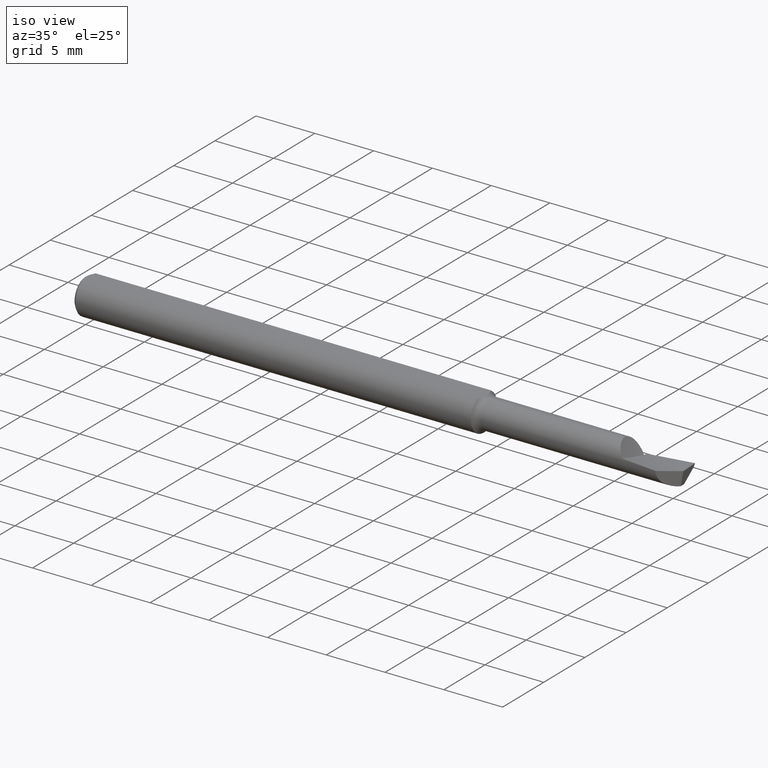
[diagram: clean part render]
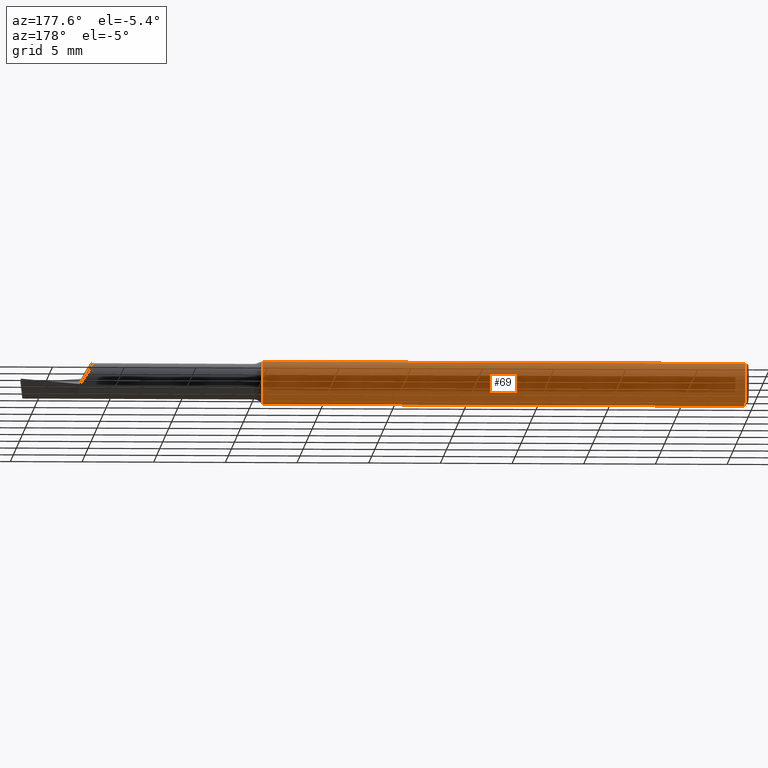
[diagram: tour spotlight — one face highlighted and labeled with its STEP entity id]
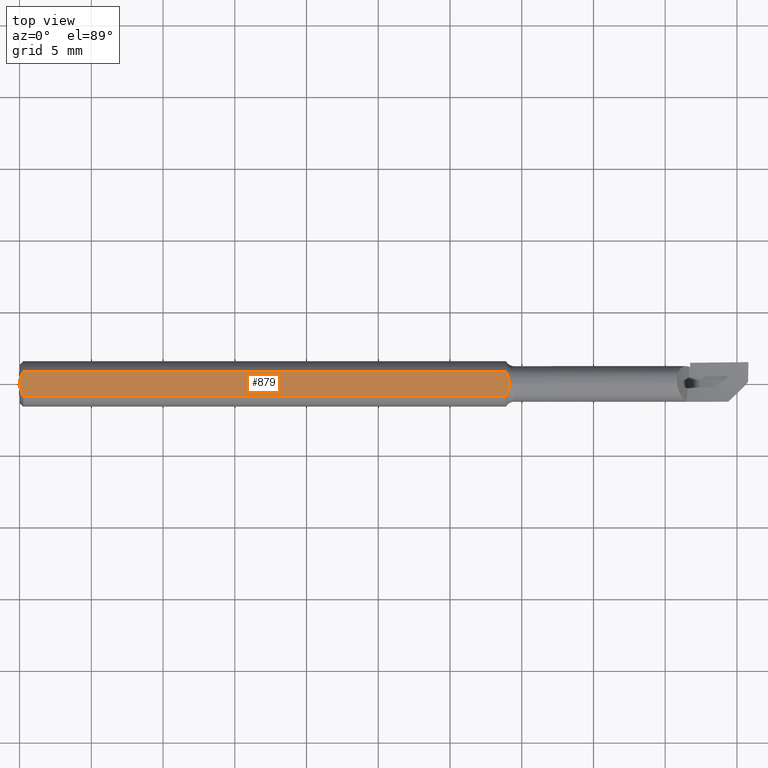
[diagram: tour spotlight — one face highlighted and labeled with its STEP entity id]
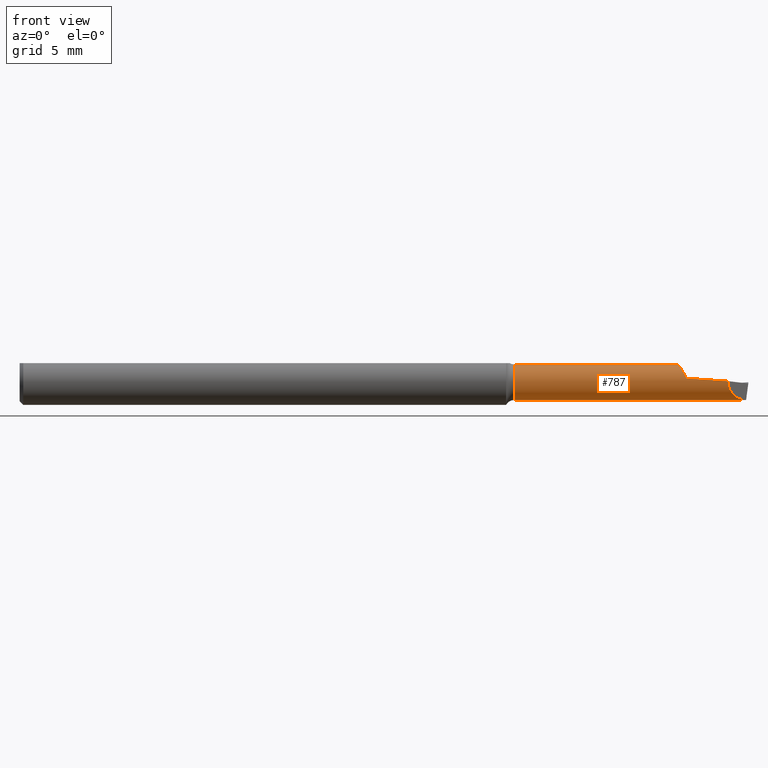
[diagram: tour spotlight — one face highlighted and labeled with its STEP entity id]
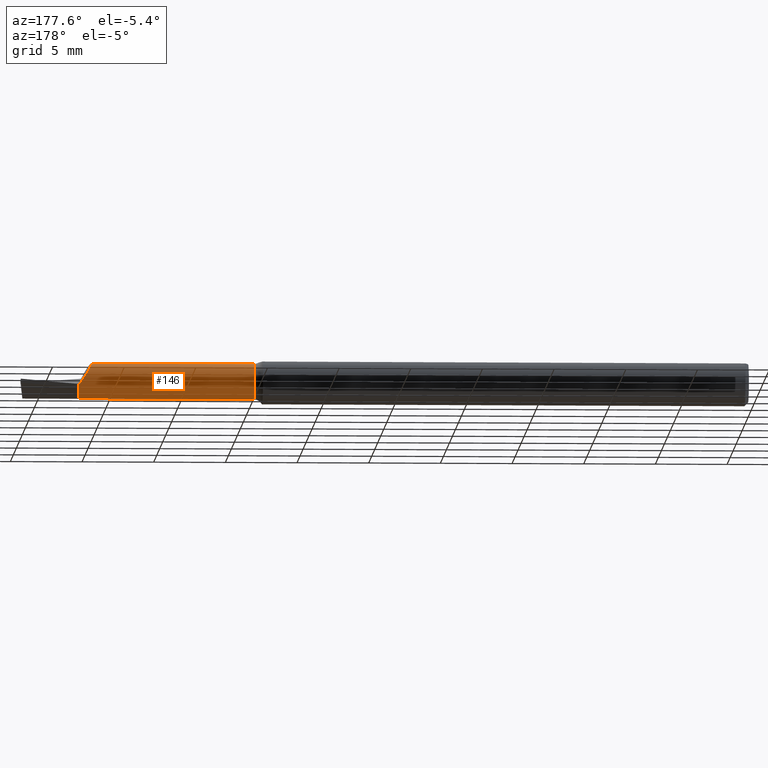
[diagram: tour spotlight — one face highlighted and labeled with its STEP entity id]
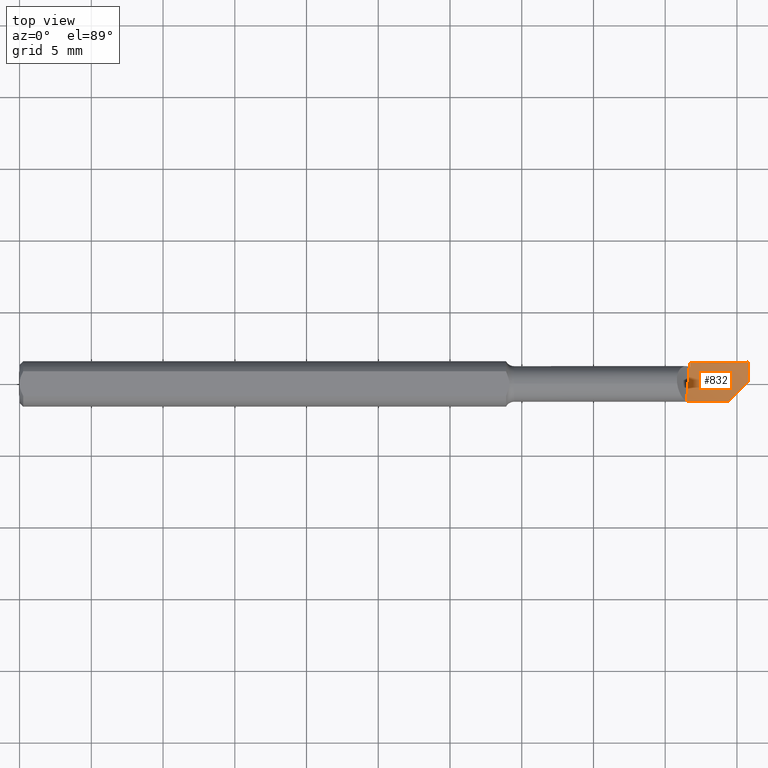
[diagram: tour spotlight — one face highlighted and labeled with its STEP entity id]
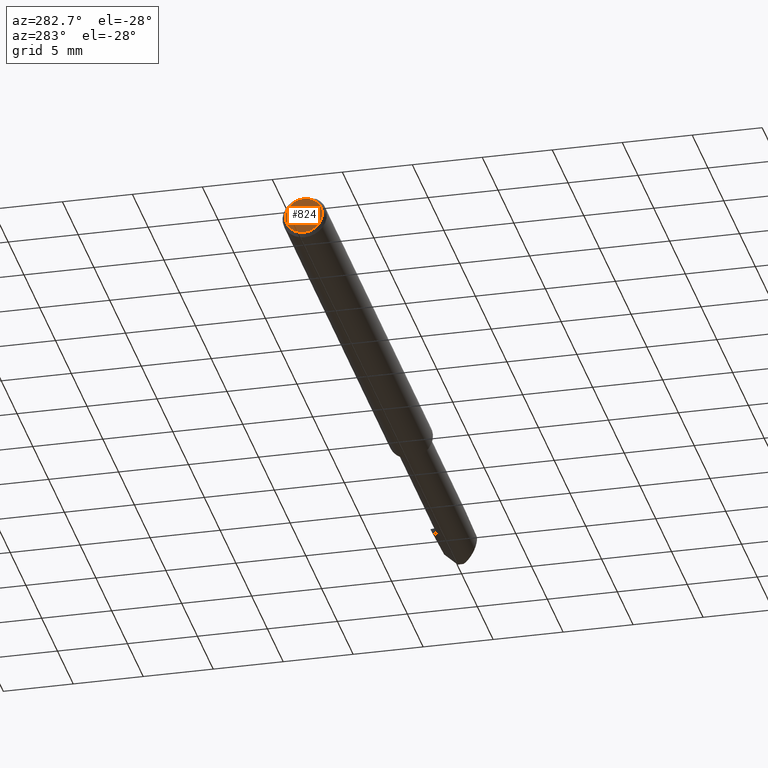
[diagram: tour spotlight — one face highlighted and labeled with its STEP entity id]
A machine part: a face-by-face anatomy tour. The part has 20 B-rep faces; the first image is the clean iso view, then the 6 largest visible faces are spotlighted one at a time (largest first), each with its STEP entity span.

Face 1 — auxiliary view, entity #69. In plain terms, the highlighted cylindrical surface (edge-blend (fillet) strip) has radius 1.5837 mm, axis along (-1, -0, -0).
Definition (entity closure, byte-faithful):
#22 = CYLINDRICAL_SURFACE ( 'NONE', #374, 0.06235000000000000264 ) ;
#35 = VERTEX_POINT ( 'NONE', #129 ) ;
#69 = ADVANCED_FACE ( 'NONE', ( #151 ), #22, .T. ) ;
#84 = CIRCLE ( 'NONE', #577, 0.06235000000000000264 ) ;
#103 = DIRECTION ( 'NONE',  ( 0.000000000000000000, 0.000000000000000000, -1.000000000000000000 ) ) ;
#126 = VECTOR ( 'NONE', #630, 39.37007874015748143 ) ;
#129 = CARTESIAN_POINT ( 'NONE',  ( 0.01000000000000000021, 0.03386738844375223462, 0.05234999999999997988 ) ) ;
#151 = FACE_OUTER_BOUND ( 'NONE', #289, .T. ) ;
#172 = DIRECTION ( 'NONE',  ( 1.000000000000000000, 0.000000000000000000, 0.000000000000000000 ) ) ;
#212 = ORIENTED_EDGE ( 'NONE', *, *, #485, .F. ) ;
#222 = LINE ( 'NONE', #490, #807 ) ;
#249 = CIRCLE ( 'NONE', #673, 0.06235000000000000264 ) ;
#254 = EDGE_CURVE ( 'NONE', #623, #637, #774, .T. ) ;
#263 = CIRCLE ( 'NONE', #475, 0.06235000000000000264 ) ;
#289 = EDGE_LOOP ( 'NONE', ( #212, #699, #528, #717, #805, #838 ) ) ;
#291 = AXIS2_PLACEMENT_3D ( 'NONE', #355, #297, #494 ) ;
#297 = DIRECTION ( 'NONE',  ( -1.000000000000000000, -0.000000000000000000, -0.000000000000000000 ) ) ;
#299 = VERTEX_POINT ( 'NONE', #414 ) ;
#301 = DIRECTION ( 'NONE',  ( 0.000000000000000000, 0.000000000000000000, -1.000000000000000000 ) ) ;
#332 = CARTESIAN_POINT ( 'NONE',  ( 0.01000000000000000021, -0.03386738844375224156, 0.05234999999999997988 ) ) ;
#335 = CARTESIAN_POINT ( 'NONE',  ( 1.334999999999999520, -0.03386738844375224156, 0.05234999999999997988 ) ) ;
#355 = CARTESIAN_POINT ( 'NONE',  ( 0.01000000000000000021, 0.000000000000000000, 0.000000000000000000 ) ) ;
#357 = CARTESIAN_POINT ( 'NONE',  ( 0.000000000000000000, -0.03386738844375224156, 0.05234999999999997988 ) ) ;
#371 = VERTEX_POINT ( 'NONE', #579 ) ;
#374 = AXIS2_PLACEMENT_3D ( 'NONE', #556, #842, #768 ) ;
#379 = EDGE_CURVE ( 'NONE', #512, #371, #249, .T. ) ;
#388 = CIRCLE ( 'NONE', #291, 0.06235000000000000264 ) ;
#414 = CARTESIAN_POINT ( 'NONE',  ( 0.01000000000000000021, 0.000000000000000000, -0.06235000000000000264 ) ) ;
#439 = CARTESIAN_POINT ( 'NONE',  ( 0.01000000000000000021, 0.000000000000000000, 0.000000000000000000 ) ) ;
#457 = DIRECTION ( 'NONE',  ( -1.000000000000000000, -0.000000000000000000, -0.000000000000000000 ) ) ;
#475 = AXIS2_PLACEMENT_3D ( 'NONE', #439, #457, #888 ) ;
#485 = EDGE_CURVE ( 'NONE', #371, #35, #222, .T. ) ;
#490 = CARTESIAN_POINT ( 'NONE',  ( 0.000000000000000000, 0.03386738844375223462, 0.05234999999999997988 ) ) ;
#494 = DIRECTION ( 'NONE',  ( 0.000000000000000000, 0.000000000000000000, 1.000000000000000000 ) ) ;
#498 = EDGE_CURVE ( 'NONE', #299, #623, #388, .T. ) ;
#512 = VERTEX_POINT ( 'NONE', #702 ) ;
#528 = ORIENTED_EDGE ( 'NONE', *, *, #885, .F. ) ;
#556 = CARTESIAN_POINT ( 'NONE',  ( 0.000000000000000000, 0.000000000000000000, 0.000000000000000000 ) ) ;
#568 = DIRECTION ( 'NONE',  ( -1.000000000000000000, -0.000000000000000000, -0.000000000000000000 ) ) ;
#577 = AXIS2_PLACEMENT_3D ( 'NONE', #708, #846, #103 ) ;
#579 = CARTESIAN_POINT ( 'NONE',  ( 1.334999999999999520, 0.03386738844375226237, 0.05234999999999997988 ) ) ;
#623 = VERTEX_POINT ( 'NONE', #332 ) ;
#630 = DIRECTION ( 'NONE',  ( 1.000000000000000000, 0.000000000000000000, 0.000000000000000000 ) ) ;
#637 = VERTEX_POINT ( 'NONE', #335 ) ;
#673 = AXIS2_PLACEMENT_3D ( 'NONE', #857, #172, #301 ) ;
#699 = ORIENTED_EDGE ( 'NONE', *, *, #379, .F. ) ;
#702 = CARTESIAN_POINT ( 'NONE',  ( 1.334999999999999520, 7.635672792683760538E-18, -0.06235000000000011366 ) ) ;
#708 = CARTESIAN_POINT ( 'NONE',  ( 1.334999999999999520, 0.000000000000000000, 0.000000000000000000 ) ) ;
#717 = ORIENTED_EDGE ( 'NONE', *, *, #254, .F. ) ;
#768 = DIRECTION ( 'NONE',  ( 0.000000000000000000, 0.000000000000000000, 1.000000000000000000 ) ) ;
#774 = LINE ( 'NONE', #357, #126 ) ;
#805 = ORIENTED_EDGE ( 'NONE', *, *, #498, .F. ) ;
#807 = VECTOR ( 'NONE', #568, 39.37007874015748143 ) ;
#811 = EDGE_CURVE ( 'NONE', #35, #299, #263, .T. ) ;
#838 = ORIENTED_EDGE ( 'NONE', *, *, #811, .F. ) ;
#842 = DIRECTION ( 'NONE',  ( -1.000000000000000000, -0.000000000000000000, -0.000000000000000000 ) ) ;
#846 = DIRECTION ( 'NONE',  ( 1.000000000000000000, 0.000000000000000000, 0.000000000000000000 ) ) ;
#857 = CARTESIAN_POINT ( 'NONE',  ( 1.334999999999999520, 0.000000000000000000, 0.000000000000000000 ) ) ;
#885 = EDGE_CURVE ( 'NONE', #637, #512, #84, .T. ) ;
#888 = DIRECTION ( 'NONE',  ( 0.000000000000000000, 0.000000000000000000, 1.000000000000000000 ) ) ;

Face 2 — top view, entity #879. In plain terms, the highlighted planar face has unit normal (0, -0, 1).
Definition (entity closure, byte-faithful):
#5 = CARTESIAN_POINT ( 'NONE',  ( 1.341766842186041364, 0.01438101913600744672, 0.05234999999999997294 ) ) ;
#19 = EDGE_CURVE ( 'NONE', #371, #395, #567, .T. ) ;
#35 = VERTEX_POINT ( 'NONE', #129 ) ;
#53 = CARTESIAN_POINT ( 'NONE',  ( 1.334999999999999520, 0.03386738844375226237, 0.05234999999999997988 ) ) ;
#104 = CARTESIAN_POINT ( 'NONE',  ( 1.344618518037863364, 0.000000000000000000, 0.05234999999999997988 ) ) ;
#123 = CARTESIAN_POINT ( 'NONE',  ( 1.344618518037863364, 0.000000000000000000, 0.05234999999999997988 ) ) ;
#126 = VECTOR ( 'NONE', #630, 39.37007874015748143 ) ;
#129 = CARTESIAN_POINT ( 'NONE',  ( 0.01000000000000000021, 0.03386738844375223462, 0.05234999999999997988 ) ) ;
#162 = CARTESIAN_POINT ( 'NONE',  ( 1.338776651988929034, -0.02268582240825666937, 0.05234999999999998682 ) ) ;
#188 = CARTESIAN_POINT ( 'NONE',  ( 1.344091638239495401, 0.005901228908898705112, 0.05234999999999997988 ) ) ;
#199 = CARTESIAN_POINT ( 'NONE',  ( 0.01000000000000000021, 0.03386738844375223462, 0.05234999999999997988 ) ) ;
#222 = LINE ( 'NONE', #490, #807 ) ;
#243 = CARTESIAN_POINT ( 'NONE',  ( 0.000000000000000000, -5.426997665009263557E-18, 0.05234999999999997988 ) ) ;
#254 = EDGE_CURVE ( 'NONE', #623, #637, #774, .T. ) ;
#264 = CARTESIAN_POINT ( 'NONE',  ( 0.000000000000000000, -5.426997665009263557E-18, 0.05234999999999997988 ) ) ;
#268 = CARTESIAN_POINT ( 'NONE',  ( 0.007185421074056372141, 0.02868573718286561436, 0.05234999999999997988 ) ) ;
#278 = EDGE_CURVE ( 'NONE', #35, #597, #505, .T. ) ;
#286 = FACE_OUTER_BOUND ( 'NONE', #328, .T. ) ;
#328 = EDGE_LOOP ( 'NONE', ( #752, #518, #705, #665, #377, #865 ) ) ;
#332 = CARTESIAN_POINT ( 'NONE',  ( 0.01000000000000000021, -0.03386738844375224156, 0.05234999999999997988 ) ) ;
#335 = CARTESIAN_POINT ( 'NONE',  ( 1.334999999999999520, -0.03386738844375224156, 0.05234999999999997988 ) ) ;
#357 = CARTESIAN_POINT ( 'NONE',  ( 0.000000000000000000, -0.03386738844375224156, 0.05234999999999997988 ) ) ;
#369 = CARTESIAN_POINT ( 'NONE',  ( 1.336624038813225335, -0.02819059816409839186, 0.05234999999999998682 ) ) ;
#371 = VERTEX_POINT ( 'NONE', #579 ) ;
#377 = ORIENTED_EDGE ( 'NONE', *, *, #19, .F. ) ;
#392 = CARTESIAN_POINT ( 'NONE',  ( 1.343794283669409007, 0.007336375934379098414, 0.05234999999999997988 ) ) ;
#395 = VERTEX_POINT ( 'NONE', #104 ) ;
#408 = B_SPLINE_CURVE_WITH_KNOTS ( 'NONE', 3,
 ( #243, #797, #452, #642, #657, #875 ),
 .UNSPECIFIED., .F., .F.,
 ( 4, 2, 4 ),
 ( 0.001820301466808375672, 0.002269751589838322255, 0.002719201712868268839 ),
 .UNSPECIFIED. ) ;
#431 = CARTESIAN_POINT ( 'NONE',  ( 1.344618518037863142, -0.005946755993999284541, 0.05234999999999997988 ) ) ;
#435 = CARTESIAN_POINT ( 'NONE',  ( 1.344618518037863364, 0.000000000000000000, 0.05234999999999997988 ) ) ;
#441 = CARTESIAN_POINT ( 'NONE',  ( 1.334999999999999520, -0.03386738844375224156, 0.05234999999999997988 ) ) ;
#445 = EDGE_CURVE ( 'NONE', #395, #637, #710, .T. ) ;
#452 = CARTESIAN_POINT ( 'NONE',  ( 0.001055043921633255690, -0.01186408073210960291, 0.05234999999999997988 ) ) ;
#456 = CARTESIAN_POINT ( 'NONE',  ( 1.344401120227541213, 0.003715400134043260211, 0.05234999999999997294 ) ) ;
#485 = EDGE_CURVE ( 'NONE', #371, #35, #222, .T. ) ;
#490 = CARTESIAN_POINT ( 'NONE',  ( 0.000000000000000000, 0.03386738844375223462, 0.05234999999999997988 ) ) ;
#505 = B_SPLINE_CURVE_WITH_KNOTS ( 'NONE', 3,
 ( #199, #268, #537, #694, #606, #684 ),
 .UNSPECIFIED., .F., .F.,
 ( 4, 2, 4 ),
 ( 0.0009229516234080532410, 0.001371626545108214565, 0.001820301466808375672 ),
 .UNSPECIFIED. ) ;
#506 = CARTESIAN_POINT ( 'NONE',  ( 1.342776111237222292, -0.01157676477903671515, 0.05234999999999997988 ) ) ;
#509 = DIRECTION ( 'NONE',  ( 0.000000000000000000, -1.000000000000000000, -1.036675771730518732E-16 ) ) ;
#518 = ORIENTED_EDGE ( 'NONE', *, *, #743, .T. ) ;
#537 = CARTESIAN_POINT ( 'NONE',  ( 0.004671770759546989976, 0.02323517832780104542, 0.05234999999999997988 ) ) ;
#567 = B_SPLINE_CURVE_WITH_KNOTS ( 'NONE', 3,
 ( #53, #604, #669, #5, #819, #392, #188, #456, #747, #738, #883, #123 ),
 .UNSPECIFIED., .F., .F.,
 ( 4, 2, 2, 2, 2, 4 ),
 ( 0.008890890773429874216, 0.009308003943733622956, 0.009516560528885492989, 0.009620838821461428006, 0.009672977967749395514, 0.009725117114037361288 ),
 .UNSPECIFIED. ) ;
#568 = DIRECTION ( 'NONE',  ( -1.000000000000000000, -0.000000000000000000, -0.000000000000000000 ) ) ;
#579 = CARTESIAN_POINT ( 'NONE',  ( 1.334999999999999520, 0.03386738844375226237, 0.05234999999999997988 ) ) ;
#597 = VERTEX_POINT ( 'NONE', #264 ) ;
#604 = CARTESIAN_POINT ( 'NONE',  ( 1.336621382626883792, 0.02819988280240982512, 0.05235000000000000070 ) ) ;
#606 = CARTESIAN_POINT ( 'NONE',  ( -7.517250668112770884E-16, 0.005954997531773991229, 0.05234999999999998682 ) ) ;
#623 = VERTEX_POINT ( 'NONE', #332 ) ;
#630 = DIRECTION ( 'NONE',  ( 1.000000000000000000, 0.000000000000000000, 0.000000000000000000 ) ) ;
#634 = DIRECTION ( 'NONE',  ( 0.000000000000000000, -1.036675771730518732E-16, 1.000000000000000000 ) ) ;
#637 = VERTEX_POINT ( 'NONE', #335 ) ;
#639 = CARTESIAN_POINT ( 'NONE',  ( 2.000787401574803059, 0.08234999999999999265, 0.05234999999999998682 ) ) ;
#642 = CARTESIAN_POINT ( 'NONE',  ( 0.004679365186781223734, -0.02325953974079656220, 0.05234999999999998682 ) ) ;
#657 = CARTESIAN_POINT ( 'NONE',  ( 0.007163450771350561574, -0.02864528976618616399, 0.05234999999999998682 ) ) ;
#665 = ORIENTED_EDGE ( 'NONE', *, *, #445, .F. ) ;
#669 = CARTESIAN_POINT ( 'NONE',  ( 1.338771552517527885, 0.02269823973384043833, 0.05234999999999998682 ) ) ;
#684 = CARTESIAN_POINT ( 'NONE',  ( 0.000000000000000000, -5.426997665009263557E-18, 0.05234999999999997988 ) ) ;
#694 = CARTESIAN_POINT ( 'NONE',  ( 0.001063697276021675735, 0.01189177144351694949, 0.05234999999999998682 ) ) ;
#705 = ORIENTED_EDGE ( 'NONE', *, *, #254, .T. ) ;
#710 = B_SPLINE_CURVE_WITH_KNOTS ( 'NONE', 3,
 ( #435, #431, #506, #162, #369, #441 ),
 .UNSPECIFIED., .F., .F.,
 ( 4, 2, 4 ),
 ( 7.198087379834300707E-21, 0.0004459248841050829208, 0.0008918497682101658415 ),
 .UNSPECIFIED. ) ;
#738 = CARTESIAN_POINT ( 'NONE',  ( 1.344590222459207673, 0.001500383769735516093, 0.05234999999999998682 ) ) ;
#743 = EDGE_CURVE ( 'NONE', #597, #623, #408, .T. ) ;
#747 = CARTESIAN_POINT ( 'NONE',  ( 1.344481504797321314, 0.002981268191583254928, 0.05234999999999998682 ) ) ;
#752 = ORIENTED_EDGE ( 'NONE', *, *, #278, .T. ) ;
#774 = LINE ( 'NONE', #357, #126 ) ;
#797 = CARTESIAN_POINT ( 'NONE',  ( -7.326168038673117461E-16, -0.005965286321680246008, 0.05234999999999997988 ) ) ;
#807 = VECTOR ( 'NONE', #568, 39.37007874015748143 ) ;
#819 = CARTESIAN_POINT ( 'NONE',  ( 1.342719374672926458, 0.01159748386621100961, 0.05234999999999997988 ) ) ;
#851 = PLANE ( 'NONE',  #878 ) ;
#865 = ORIENTED_EDGE ( 'NONE', *, *, #485, .T. ) ;
#875 = CARTESIAN_POINT ( 'NONE',  ( 0.01000000000000000021, -0.03386738844375224156, 0.05234999999999997988 ) ) ;
#878 = AXIS2_PLACEMENT_3D ( 'NONE', #639, #634, #509 ) ;
#879 = ADVANCED_FACE ( 'NONE', ( #286 ), #851, .T. ) ;
#883 = CARTESIAN_POINT ( 'NONE',  ( 1.344618518037863142, 0.0006953161659328104286, 0.05234999999999996600 ) ) ;

Face 3 — front view, entity #787. In plain terms, the highlighted cylindrical surface (edge-blend (fillet) strip) has radius 1.2446 mm, axis along (-1, -0, -0).
Definition (entity closure, byte-faithful):
#14 = CARTESIAN_POINT ( 'NONE',  ( 1.814234550672020996, -0.03021089101348123709, 0.03857928534318819797 ) ) ;
#16 = VERTEX_POINT ( 'NONE', #800 ) ;
#17 = CARTESIAN_POINT ( 'NONE',  ( 1.814439388214097670, -0.03059250315277910193, 0.03827738162762417407 ) ) ;
#27 = LINE ( 'NONE', #426, #602 ) ;
#30 = CARTESIAN_POINT ( 'NONE',  ( 1.804503833942547208, -1.825471063066231510E-06, 0.04900266891759191140 ) ) ;
#36 = CYLINDRICAL_SURFACE ( 'NONE', #861, 0.04899999999999996025 ) ;
#46 = ORIENTED_EDGE ( 'NONE', *, *, #488, .T. ) ;
#55 = ORIENTED_EDGE ( 'NONE', *, *, #266, .T. ) ;
#70 = CARTESIAN_POINT ( 'NONE',  ( 1.816346200807741340, -0.03406424836716814147, 0.03544713894359931283 ) ) ;
#75 = CARTESIAN_POINT ( 'NONE',  ( 1.357119617989467786, 0.000000000000000000, 0.04899999999999992556 ) ) ;
#77 = CARTESIAN_POINT ( 'NONE',  ( 1.818505561656034830, -0.03743840301047385299, 0.03207822607661268283 ) ) ;
#83 = CARTESIAN_POINT ( 'NONE',  ( 1.357119617989467786, 6.818221054252887442E-18, -0.04899999999999992556 ) ) ;
#92 = DIRECTION ( 'NONE',  ( -1.000000000000000000, -0.000000000000000000, -0.000000000000000000 ) ) ;
#93 = CARTESIAN_POINT ( 'NONE',  ( 1.993459566557934881, -1.708151345638028937E-05, -0.04899999776700424137 ) ) ;
#97 = LINE ( 'NONE', #361, #447 ) ;
#140 = DIRECTION ( 'NONE',  ( 0.000000000000000000, 0.000000000000000000, 1.000000000000000000 ) ) ;
#153 = LINE ( 'NONE', #698, #220 ) ;
#158 = DIRECTION ( 'NONE',  ( 1.000000000000000000, -0.000000000000000000, -0.000000000000000000 ) ) ;
#170 = VERTEX_POINT ( 'NONE', #376 ) ;
#171 = DIRECTION ( 'NONE',  ( 0.000000000000000000, 0.000000000000000000, 1.000000000000000000 ) ) ;
#192 = EDGE_CURVE ( 'NONE', #170, #16, #727, .T. ) ;
#204 = CARTESIAN_POINT ( 'NONE',  ( 1.830311579673471689, -0.04782063119362631176, 0.01068584260801039125 ) ) ;
#206 = EDGE_CURVE ( 'NONE', #16, #324, #785, .T. ) ;
#207 = ORIENTED_EDGE ( 'NONE', *, *, #600, .F. ) ;
#219 = ORIENTED_EDGE ( 'NONE', *, *, #438, .T. ) ;
#220 = VECTOR ( 'NONE', #92, 39.37007874015748143 ) ;
#228 = CARTESIAN_POINT ( 'NONE',  ( 1.944561408630989918, -0.04892370538428329751, 0.002733322423689832185 ) ) ;
#238 = DIRECTION ( 'NONE',  ( -1.000000000000000000, -0.000000000000000000, -0.000000000000000000 ) ) ;
#240 = CARTESIAN_POINT ( 'NONE',  ( 1.887595606984167285, -0.04869902244661961088, 0.006754919638808926617 ) ) ;
#241 = CARTESIAN_POINT ( 'NONE',  ( 1.993459491749732804, -2.562226554050514867E-05, -0.04899999999999999495 ) ) ;
#242 = ORIENTED_EDGE ( 'NONE', *, *, #192, .F. ) ;
#260 = B_SPLINE_CURVE_WITH_KNOTS ( 'NONE', 3,
 ( #204, #405, #473, #77, #70, #621, #17, #14, #535, #615, #749, #468, #284, #548, #746, #836, #398 ),
 .UNSPECIFIED., .F., .F.,
 ( 4, 2, 2, 2, 2, 1, 2, 2, 4 ),
 ( 0.000000000000000000, 0.2362606948060287926, 0.4725213896120574741, 0.4872876830374328061, 0.5020539764628080270, 0.5315865633135546942, 0.5906517370150484725, 0.7087820844180390267, 0.9450427792240169156 ),
 .UNSPECIFIED. ) ;
#266 = EDGE_CURVE ( 'NONE', #766, #324, #27, .T. ) ;
#271 = VERTEX_POINT ( 'NONE', #83 ) ;
#273 = CARTESIAN_POINT ( 'NONE',  ( 1.830311579673471689, -0.04782063119362631176, 0.01068584260801039125 ) ) ;
#276 = ORIENTED_EDGE ( 'NONE', *, *, #517, .F. ) ;
#282 = ORIENTED_EDGE ( 'NONE', *, *, #352, .T. ) ;
#284 = CARTESIAN_POINT ( 'NONE',  ( 1.810111401712722001, -0.02126133733533166689, 0.04425218683564469124 ) ) ;
#285 = ORIENTED_EDGE ( 'NONE', *, *, #206, .F. ) ;
#310 = CARTESIAN_POINT ( 'NONE',  ( 1.993459640817800471, -8.540756874131671779E-06, -0.04899999999999995332 ) ) ;
#324 = VERTEX_POINT ( 'NONE', #483 ) ;
#352 = EDGE_CURVE ( 'NONE', #632, #546, #260, .T. ) ;
#361 = CARTESIAN_POINT ( 'NONE',  ( 0.000000000000000000, 6.000769315822025902E-18, -0.04899999999999996025 ) ) ;
#368 = FACE_OUTER_BOUND ( 'NONE', #626, .T. ) ;
#376 = CARTESIAN_POINT ( 'NONE',  ( 1.944561408630989918, -0.04892370538428329751, 0.002733322423689832185 ) ) ;
#398 = CARTESIAN_POINT ( 'NONE',  ( 1.804503833942547208, -1.825471063066231510E-06, 0.04900266891759191140 ) ) ;
#405 = CARTESIAN_POINT ( 'NONE',  ( 1.826834881575801539, -0.04631717791678397617, 0.01741859763985422957 ) ) ;
#421 = CARTESIAN_POINT ( 'NONE',  ( 1.993459491749732804, -2.562226554050514867E-05, -0.04899999999999999495 ) ) ;
#426 = CARTESIAN_POINT ( 'NONE',  ( 1.799999999999999822, 0.000000000000000000, -0.04899999999999999495 ) ) ;
#438 = EDGE_CURVE ( 'NONE', #170, #632, #565, .T. ) ;
#442 = CARTESIAN_POINT ( 'NONE',  ( 1.993459715351856731, 0.000000000000000000, -0.04899999999999999495 ) ) ;
#447 = VECTOR ( 'NONE', #635, 39.37007874015748143 ) ;
#468 = CARTESIAN_POINT ( 'NONE',  ( 1.811809909285970743, -0.02525360237372531805, 0.04201881356494569647 ) ) ;
#473 = CARTESIAN_POINT ( 'NONE',  ( 1.823749902040064041, -0.04356722891031866718, 0.02307689695935797453 ) ) ;
#483 = CARTESIAN_POINT ( 'NONE',  ( 1.993459715351856731, 0.000000000000000000, -0.04899999999999999495 ) ) ;
#488 = EDGE_CURVE ( 'NONE', #546, #830, #153, .T. ) ;
#517 = EDGE_CURVE ( 'NONE', #766, #271, #97, .T. ) ;
#535 = CARTESIAN_POINT ( 'NONE',  ( 1.814172803884293028, -0.03009584137476902996, 0.03867038851408722416 ) ) ;
#546 = VERTEX_POINT ( 'NONE', #30 ) ;
#548 = CARTESIAN_POINT ( 'NONE',  ( 1.809106935400828231, -0.01854137424431350975, 0.04544712671650564390 ) ) ;
#565 =( BOUNDED_CURVE ( )  B_SPLINE_CURVE ( 2, ( #228, #240, #791 ),
 .UNSPECIFIED., .F., .T. ) 
 B_SPLINE_CURVE_WITH_KNOTS ( ( 3, 3 ),
 ( 0.1027557203661723234, 0.3111155072724108850 ),
 .UNSPECIFIED. ) 
 CURVE ( )  GEOMETRIC_REPRESENTATION_ITEM ( )  RATIONAL_B_SPLINE_CURVE ( ( 0.9833849614672506290, 0.9787180070765169049, 0.9806550825657391890 ) ) 
 REPRESENTATION_ITEM ( '' )  );
#580 = CARTESIAN_POINT ( 'NONE',  ( 1.963481447571014948, -0.03000366644425848245, -0.04898431767936516773 ) ) ;
#585 = CARTESIAN_POINT ( 'NONE',  ( 1.944561408630989918, -0.04892370538428329751, 0.002733322423689832185 ) ) ;
#600 = EDGE_CURVE ( 'NONE', #271, #830, #798, .T. ) ;
#602 = VECTOR ( 'NONE', #158, 39.37007874015748143 ) ;
#615 = CARTESIAN_POINT ( 'NONE',  ( 1.813676248951452852, -0.02914701466088285078, 0.03939652268793691903 ) ) ;
#616 = AXIS2_PLACEMENT_3D ( 'NONE', #850, #745, #140 ) ;
#621 = CARTESIAN_POINT ( 'NONE',  ( 1.814543614834134733, -0.03078442293331551047, 0.03812323841574580957 ) ) ;
#626 = EDGE_LOOP ( 'NONE', ( #276, #55, #285, #242, #219, #282, #46, #207 ) ) ;
#632 = VERTEX_POINT ( 'NONE', #273 ) ;
#635 = DIRECTION ( 'NONE',  ( -1.000000000000000000, -0.000000000000000000, -0.000000000000000000 ) ) ;
#698 = CARTESIAN_POINT ( 'NONE',  ( 0.000000000000000000, 0.000000000000000000, 0.04899999999999996025 ) ) ;
#727 =( BOUNDED_CURVE ( )  B_SPLINE_CURVE ( 3, ( #585, #780, #580, #241 ),
 .UNSPECIFIED., .F., .F. ) 
 B_SPLINE_CURVE_WITH_KNOTS ( ( 4, 4 ),
 ( 6.227374247338802959, 7.853458730608020133 ),
 .UNSPECIFIED. ) 
 CURVE ( )  GEOMETRIC_REPRESENTATION_ITEM ( )  RATIONAL_B_SPLINE_CURVE ( ( 1.000000000000000000, 0.7915278593474106561, 0.7915278593474106561, 1.000000000000000000 ) ) 
 REPRESENTATION_ITEM ( '' )  );
#745 = DIRECTION ( 'NONE',  ( -1.000000000000000000, -0.000000000000000000, -0.000000000000000000 ) ) ;
#746 = CARTESIAN_POINT ( 'NONE',  ( 1.806477152675963982, -0.01039934079566225480, 0.04822602257734869002 ) ) ;
#749 = CARTESIAN_POINT ( 'NONE',  ( 1.812707115098947996, -0.02722748130329008531, 0.04079216654393244545 ) ) ;
#766 = VERTEX_POINT ( 'NONE', #790 ) ;
#780 = CARTESIAN_POINT ( 'NONE',  ( 1.942889170435496693, -0.05059594357977593299, -0.02719804904553668745 ) ) ;
#785 =( BOUNDED_CURVE ( )  B_SPLINE_CURVE ( 3, ( #421, #93, #310, #442 ),
 .UNSPECIFIED., .F., .T. ) 
 B_SPLINE_CURVE_WITH_KNOTS ( ( 4, 4 ),
 ( 0.07042971948830194229, 0.07095262296443598238 ),
 .UNSPECIFIED. ) 
 CURVE ( )  GEOMETRIC_REPRESENTATION_ITEM ( )  RATIONAL_B_SPLINE_CURVE ( ( 1.000000000000000000, 0.9999999772143297605, 0.9999999772143297605, 1.000000000000000000 ) ) 
 REPRESENTATION_ITEM ( '' )  );
#787 = ADVANCED_FACE ( 'NONE', ( #368 ), #36, .T. ) ;
#790 = CARTESIAN_POINT ( 'NONE',  ( 1.840000000000000080, 0.000000000000000000, -0.04899999999999999495 ) ) ;
#791 = CARTESIAN_POINT ( 'NONE',  ( 1.830311579673471689, -0.04782063119362631176, 0.01068584260801039125 ) ) ;
#798 = CIRCLE ( 'NONE', #616, 0.04899999999999992556 ) ;
#800 = CARTESIAN_POINT ( 'NONE',  ( 1.993459491749732804, -2.562226554050514867E-05, -0.04899999999999999495 ) ) ;
#830 = VERTEX_POINT ( 'NONE', #75 ) ;
#836 = CARTESIAN_POINT ( 'NONE',  ( 1.805235452473810787, -0.005009325575669950313, 0.04899983374284349463 ) ) ;
#850 = CARTESIAN_POINT ( 'NONE',  ( 1.357119617989467786, 0.000000000000000000, 0.000000000000000000 ) ) ;
#860 = CARTESIAN_POINT ( 'NONE',  ( 0.000000000000000000, 0.000000000000000000, 0.000000000000000000 ) ) ;
#861 = AXIS2_PLACEMENT_3D ( 'NONE', #860, #238, #171 ) ;

Face 4 — auxiliary view, entity #146. In plain terms, the highlighted cylindrical surface (edge-blend (fillet) strip) has radius 1.2446 mm, axis along (-1, -0, -0).
Definition (entity closure, byte-faithful):
#1 = CIRCLE ( 'NONE', #114, 0.04899999999999992556 ) ;
#3 = CARTESIAN_POINT ( 'NONE',  ( 1.840000000000000080, 0.04741245247774636407, -0.01237171572763642348 ) ) ;
#12 = CARTESIAN_POINT ( 'NONE',  ( 1.840000000000000080, 0.04741245247774636407, -0.01237171572763642348 ) ) ;
#29 = CARTESIAN_POINT ( 'NONE',  ( 1.804503833942547208, -1.825471063066231510E-06, 0.04900266891759191140 ) ) ;
#30 = CARTESIAN_POINT ( 'NONE',  ( 1.804503833942547208, -1.825471063066231510E-06, 0.04900266891759191140 ) ) ;
#34 = CARTESIAN_POINT ( 'NONE',  ( 1.803999999999999382, 0.01389205825461405606, 0.04635647021523003203 ) ) ;
#45 = CARTESIAN_POINT ( 'NONE',  ( 1.840000000000000080, 0.000000000000000000, 0.000000000000000000 ) ) ;
#47 = CARTESIAN_POINT ( 'NONE',  ( 1.826368018486812517, 0.04877570620407547380, 0.004700569965785661442 ) ) ;
#75 = CARTESIAN_POINT ( 'NONE',  ( 1.357119617989467786, 0.000000000000000000, 0.04899999999999992556 ) ) ;
#83 = CARTESIAN_POINT ( 'NONE',  ( 1.357119617989467786, 6.818221054252887442E-18, -0.04899999999999992556 ) ) ;
#88 = EDGE_CURVE ( 'NONE', #507, #664, #119, .T. ) ;
#92 = DIRECTION ( 'NONE',  ( -1.000000000000000000, -0.000000000000000000, -0.000000000000000000 ) ) ;
#97 = LINE ( 'NONE', #361, #447 ) ;
#98 = CIRCLE ( 'NONE', #323, 0.04900000000000000189 ) ;
#99 = EDGE_CURVE ( 'NONE', #830, #271, #1, .T. ) ;
#100 = CARTESIAN_POINT ( 'NONE',  ( 1.840000000000000080, 0.000000000000000000, 0.000000000000000000 ) ) ;
#102 = CARTESIAN_POINT ( 'NONE',  ( 1.809098433170665210, 0.03588612204386354421, 0.03350639707683549656 ) ) ;
#106 = CARTESIAN_POINT ( 'NONE',  ( 1.830451720330555032, 0.04928324620751921986, -0.001623431440273861255 ) ) ;
#114 = AXIS2_PLACEMENT_3D ( 'NONE', #406, #281, #211 ) ;
#115 = ORIENTED_EDGE ( 'NONE', *, *, #671, .T. ) ;
#116 = CARTESIAN_POINT ( 'NONE',  ( 1.814511408107688739, 0.04285613190183307913, 0.02377002040214931319 ) ) ;
#119 =( BOUNDED_CURVE ( )  B_SPLINE_CURVE ( 2, ( #402, #340, #12 ),
 .UNSPECIFIED., .F., .F. ) 
 B_SPLINE_CURVE_WITH_KNOTS ( ( 3, 3 ),
 ( 0.7021898800440007360, 0.7065312519615133402 ),
 .UNSPECIFIED. ) 
 CURVE ( )  GEOMETRIC_REPRESENTATION_ITEM ( )  RATIONAL_B_SPLINE_CURVE ( ( 0.9804346179929901428, 0.9804030441062784318, 0.9803743372691625657 ) ) 
 REPRESENTATION_ITEM ( '' )  );
#146 = ADVANCED_FACE ( 'NONE', ( #853 ), #864, .T. ) ;
#152 = ORIENTED_EDGE ( 'NONE', *, *, #517, .T. ) ;
#153 = LINE ( 'NONE', #698, #220 ) ;
#157 = CARTESIAN_POINT ( 'NONE',  ( 1.803999999999999382, 0.009004235857393306716, 0.04754845617948090519 ) ) ;
#166 = CARTESIAN_POINT ( 'NONE',  ( 1.825079304903657329, 0.04855039541928757307, 0.006706321074276564397 ) ) ;
#169 = EDGE_CURVE ( 'NONE', #422, #303, #781, .T. ) ;
#173 = DIRECTION ( 'NONE',  ( 0.000000000000000000, 0.000000000000000000, 1.000000000000000000 ) ) ;
#195 = EDGE_CURVE ( 'NONE', #664, #303, #98, .T. ) ;
#198 = DIRECTION ( 'NONE',  ( 0.000000000000000000, 0.000000000000000000, 1.000000000000000000 ) ) ;
#211 = DIRECTION ( 'NONE',  ( 0.000000000000000000, 0.000000000000000000, 1.000000000000000000 ) ) ;
#220 = VECTOR ( 'NONE', #92, 39.37007874015748143 ) ;
#224 = ORIENTED_EDGE ( 'NONE', *, *, #88, .T. ) ;
#229 = DIRECTION ( 'NONE',  ( -1.000000000000000000, -0.000000000000000000, -0.000000000000000000 ) ) ;
#252 = CARTESIAN_POINT ( 'NONE',  ( 1.813284389359204551, 0.04163701589245188267, 0.02588448480451863154 ) ) ;
#271 = VERTEX_POINT ( 'NONE', #83 ) ;
#281 = DIRECTION ( 'NONE',  ( -1.000000000000000000, -0.000000000000000000, -0.000000000000000000 ) ) ;
#294 = CARTESIAN_POINT ( 'NONE',  ( 1.803999999999999826, 0.01880015359945650527, 0.04524990855943068074 ) ) ;
#296 = DIRECTION ( 'NONE',  ( -1.000000000000000000, -0.000000000000000000, -0.000000000000000000 ) ) ;
#303 = VERTEX_POINT ( 'NONE', #818 ) ;
#307 = CARTESIAN_POINT ( 'NONE',  ( 1.803999999999999826, 0.01880015359945650527, 0.04524990855943068074 ) ) ;
#311 = ORIENTED_EDGE ( 'NONE', *, *, #660, .T. ) ;
#312 = CARTESIAN_POINT ( 'NONE',  ( 1.824340565320127672, 0.04837099696647555180, 0.007863265504795451458 ) ) ;
#323 = AXIS2_PLACEMENT_3D ( 'NONE', #100, #869, #173 ) ;
#340 = CARTESIAN_POINT ( 'NONE',  ( 1.838807802063554320, 0.04739129932148997137, -0.01245278152625598107 ) ) ;
#361 = CARTESIAN_POINT ( 'NONE',  ( 0.000000000000000000, 6.000769315822025902E-18, -0.04899999999999996025 ) ) ;
#363 = CARTESIAN_POINT ( 'NONE',  ( 1.816247476648497283, 0.04434626027476912258, 0.02084350893004578362 ) ) ;
#372 = CARTESIAN_POINT ( 'NONE',  ( 1.817967539083740869, 0.04563203827182787248, 0.01799947086214470984 ) ) ;
#378 = CARTESIAN_POINT ( 'NONE',  ( 1.815911385884906970, 0.04408176998586263440, 0.02140315654859669195 ) ) ;
#393 = EDGE_CURVE ( 'NONE', #495, #451, #870, .T. ) ;
#402 = CARTESIAN_POINT ( 'NONE',  ( 1.837615750771537160, 0.04736986907716086298, -0.01253377451578856043 ) ) ;
#406 = CARTESIAN_POINT ( 'NONE',  ( 1.357119617989467786, 0.000000000000000000, 0.000000000000000000 ) ) ;
#422 = VERTEX_POINT ( 'NONE', #847 ) ;
#423 = CARTESIAN_POINT ( 'NONE',  ( 1.804179970120367127, 0.002429288453122918027, 0.04894830563162503451 ) ) ;
#427 = ORIENTED_EDGE ( 'NONE', *, *, #169, .F. ) ;
#430 = AXIS2_PLACEMENT_3D ( 'NONE', #515, #229, #715 ) ;
#447 = VECTOR ( 'NONE', #635, 39.37007874015748143 ) ;
#451 = VERTEX_POINT ( 'NONE', #720 ) ;
#482 = ORIENTED_EDGE ( 'NONE', *, *, #99, .F. ) ;
#488 = EDGE_CURVE ( 'NONE', #546, #830, #153, .T. ) ;
#495 = VERTEX_POINT ( 'NONE', #294 ) ;
#500 = DIRECTION ( 'NONE',  ( 1.000000000000000000, 0.000000000000000000, 0.000000000000000000 ) ) ;
#507 = VERTEX_POINT ( 'NONE', #773 ) ;
#513 = CARTESIAN_POINT ( 'NONE',  ( 1.822903660937024162, 0.04796778535804514104, 0.01012070825403502475 ) ) ;
#515 = CARTESIAN_POINT ( 'NONE',  ( 0.000000000000000000, 0.000000000000000000, 0.000000000000000000 ) ) ;
#517 = EDGE_CURVE ( 'NONE', #766, #271, #97, .T. ) ;
#522 = CARTESIAN_POINT ( 'NONE',  ( 1.816621695868271269, 0.04463247721700373816, 0.02022282224267015621 ) ) ;
#530 = CIRCLE ( 'NONE', #618, 0.04900000000000000189 ) ;
#546 = VERTEX_POINT ( 'NONE', #30 ) ;
#570 = CARTESIAN_POINT ( 'NONE',  ( 1.816473041571734504, 0.04452040874992755498, 0.02046890005871932969 ) ) ;
#571 = CARTESIAN_POINT ( 'NONE',  ( 1.803999999999999826, 0.004141954482210988796, 0.04882462711652069826 ) ) ;
#574 = CARTESIAN_POINT ( 'NONE',  ( 1.815142970452064963, 0.04344206293579828265, 0.02269290528578538427 ) ) ;
#582 = CARTESIAN_POINT ( 'NONE',  ( 1.804577043461437214, 0.02406355902166749938, 0.04306311276418330058 ) ) ;
#587 = ORIENTED_EDGE ( 'NONE', *, *, #488, .F. ) ;
#601 = CARTESIAN_POINT ( 'NONE',  ( 1.803999999999999826, 0.004141954482210988796, 0.04882462711652069826 ) ) ;
#605 = CARTESIAN_POINT ( 'NONE',  ( 1.804405697299801936, 0.0006953678005504432226, 0.04899629738012332980 ) ) ;
#618 = AXIS2_PLACEMENT_3D ( 'NONE', #700, #296, #198 ) ;
#635 = DIRECTION ( 'NONE',  ( -1.000000000000000000, -0.000000000000000000, -0.000000000000000000 ) ) ;
#638 = CARTESIAN_POINT ( 'NONE',  ( 1.834024388624763580, 0.04878152334288131386, -0.007199782380547142466 ) ) ;
#647 = CARTESIAN_POINT ( 'NONE',  ( 1.821999824393563783, 0.04763986125749183204, 0.01155023909499731244 ) ) ;
#654 = CARTESIAN_POINT ( 'NONE',  ( 1.819450613899009639, 0.04653270383362777263, 0.01560657198332162689 ) ) ;
#660 = EDGE_CURVE ( 'NONE', #546, #451, #762, .T. ) ;
#664 = VERTEX_POINT ( 'NONE', #3 ) ;
#668 = CARTESIAN_POINT ( 'NONE',  ( 1.804462776424516024, 0.0002895869548159797418, 0.04900000963981186730 ) ) ;
#671 = EDGE_CURVE ( 'NONE', #422, #766, #530, .T. ) ;
#692 = ORIENTED_EDGE ( 'NONE', *, *, #393, .F. ) ;
#698 = CARTESIAN_POINT ( 'NONE',  ( 0.000000000000000000, 0.000000000000000000, 0.04899999999999996025 ) ) ;
#700 = CARTESIAN_POINT ( 'NONE',  ( 1.840000000000000080, 0.000000000000000000, 0.000000000000000000 ) ) ;
#703 = DIRECTION ( 'NONE',  ( 0.000000000000000000, 0.000000000000000000, 1.000000000000000000 ) ) ;
#712 = CARTESIAN_POINT ( 'NONE',  ( 1.837615750771537160, 0.04736986907716086298, -0.01253377451578856043 ) ) ;
#715 = DIRECTION ( 'NONE',  ( 0.000000000000000000, 0.000000000000000000, 1.000000000000000000 ) ) ;
#720 = CARTESIAN_POINT ( 'NONE',  ( 1.803999999999999826, 0.004141954482210988796, 0.04882462711652069826 ) ) ;
#722 = B_SPLINE_CURVE_WITH_KNOTS ( 'NONE', 3,
 ( #783, #582, #724, #102, #872, #866, #252, #116, #574, #378, #363, #570, #522, #372, #654, #647, #513, #312, #166, #801, #47, #855, #106, #638, #712 ),
 .UNSPECIFIED., .F., .F.,
 ( 4, 2, 2, 2, 1, 1, 2, 2, 2, 2, 1, 2, 2, 4 ),
 ( 0.000000000000000000, 0.2500000000000491829, 0.3750000000000737188, 0.4375000000000839329, 0.4687500000000911493, 0.4843750000000947575, 0.4921875000000942579, 0.5000000000000938138, 0.6250000000000867084, 0.6875000000000803801, 0.7187500000000772715, 0.7343750000000731637, 0.7500000000000691669, 1.000000000000000000 ),
 .UNSPECIFIED. ) ;
#724 = CARTESIAN_POINT ( 'NONE',  ( 1.805923443309676246, 0.02916671079839638567, 0.03985313767914980959 ) ) ;
#748 = CARTESIAN_POINT ( 'NONE',  ( 1.804312749425992735, 0.001390029407928240323, 0.04898151193649107754 ) ) ;
#757 = EDGE_LOOP ( 'NONE', ( #115, #152, #482, #587, #311, #692, #884, #224, #769, #427 ) ) ;
#762 = B_SPLINE_CURVE_WITH_KNOTS ( 'NONE', 3,
 ( #29, #668, #605, #748, #423, #820, #601 ),
 .UNSPECIFIED., .F., .F.,
 ( 4, 2, 1, 4 ),
 ( 0.9450427792240169156, 0.9587820844180127144, 0.9725213896120084023, 1.000000000000000000 ),
 .UNSPECIFIED. ) ;
#766 = VERTEX_POINT ( 'NONE', #790 ) ;
#769 = ORIENTED_EDGE ( 'NONE', *, *, #195, .T. ) ;
#773 = CARTESIAN_POINT ( 'NONE',  ( 1.837615750771537160, 0.04736986907716086298, -0.01253377451578856043 ) ) ;
#778 = EDGE_CURVE ( 'NONE', #495, #507, #722, .T. ) ;
#781 = CIRCLE ( 'NONE', #841, 0.04899999999999996025 ) ;
#783 = CARTESIAN_POINT ( 'NONE',  ( 1.803999999999999826, 0.01880015359945650527, 0.04524990855943068074 ) ) ;
#790 = CARTESIAN_POINT ( 'NONE',  ( 1.840000000000000080, 0.000000000000000000, -0.04899999999999999495 ) ) ;
#801 = CARTESIAN_POINT ( 'NONE',  ( 1.825848475575154062, 0.04869110920907668283, 0.005508244520652648413 ) ) ;
#818 = CARTESIAN_POINT ( 'NONE',  ( 1.839999999999999414, 0.03564810682978802880, -0.03361863292062933217 ) ) ;
#820 = CARTESIAN_POINT ( 'NONE',  ( 1.804067118330009878, 0.003459652730049281571, 0.04888251003575252995 ) ) ;
#830 = VERTEX_POINT ( 'NONE', #75 ) ;
#841 = AXIS2_PLACEMENT_3D ( 'NONE', #45, #500, #703 ) ;
#847 = CARTESIAN_POINT ( 'NONE',  ( 1.840000000000000524, 0.009327072441087692900, -0.04810411333429506775 ) ) ;
#853 = FACE_OUTER_BOUND ( 'NONE', #757, .T. ) ;
#855 = CARTESIAN_POINT ( 'NONE',  ( 1.826675579142203354, 0.04881886068794561578, 0.004223491417023855776 ) ) ;
#864 = CYLINDRICAL_SURFACE ( 'NONE', #430, 0.04899999999999996025 ) ;
#866 = CARTESIAN_POINT ( 'NONE',  ( 1.812514518113908624, 0.04076125940055484037, 0.02724103877351416805 ) ) ;
#869 = DIRECTION ( 'NONE',  ( -1.000000000000000000, -0.000000000000000000, -0.000000000000000000 ) ) ;
#870 = B_SPLINE_CURVE_WITH_KNOTS ( 'NONE', 3,
 ( #307, #34, #157, #571 ),
 .UNSPECIFIED., .F., .F.,
 ( 4, 4 ),
 ( 0.000000000000000000, 1.000000000000000000 ),
 .UNSPECIFIED. ) ;
#872 = CARTESIAN_POINT ( 'NONE',  ( 1.810349328139099434, 0.03796850936499798768, 0.03113856358468963456 ) ) ;
#884 = ORIENTED_EDGE ( 'NONE', *, *, #778, .T. ) ;

Face 5 — top view, entity #832. In plain terms, the highlighted face is a freeform B-spline surface patch.
Definition (entity closure, byte-faithful):
#2 = CARTESIAN_POINT ( 'NONE',  ( 1.999999999999999778, -0.03809952085550567802, -0.007948974424089748705 ) ) ;
#3 = CARTESIAN_POINT ( 'NONE',  ( 1.840000000000000080, 0.04741245247774636407, -0.01237171572763642348 ) ) ;
#12 = CARTESIAN_POINT ( 'NONE',  ( 1.840000000000000080, 0.04741245247774636407, -0.01237171572763642348 ) ) ;
#42 = CARTESIAN_POINT ( 'NONE',  ( 1.920752584887913228, 0.06000000000000001860, -0.006948716010023073264 ) ) ;
#43 = EDGE_CURVE ( 'NONE', #581, #170, #136, .T. ) ;
#50 = CARTESIAN_POINT ( 'NONE',  ( 2.000000000000000000, 0.05999999999999999084, 0.000000000000000000 ) ) ;
#58 = CARTESIAN_POINT ( 'NONE',  ( 1.962595466019141810, -0.03088964799613096515, -0.001808023159182212732 ) ) ;
#66 = ORIENTED_EDGE ( 'NONE', *, *, #306, .T. ) ;
#79 = VERTEX_POINT ( 'NONE', #612 ) ;
#81 =( BOUNDED_CURVE ( )  B_SPLINE_CURVE ( 3, ( #95, #672, #534, #267 ),
 .UNSPECIFIED., .F., .F. ) 
 B_SPLINE_CURVE_WITH_KNOTS ( ( 4, 4 ),
 ( 0.002834827116600918857, 0.003115984413981230400 ),
 .UNSPECIFIED. ) 
 CURVE ( )  GEOMETRIC_REPRESENTATION_ITEM ( )  RATIONAL_B_SPLINE_CURVE ( ( 0.9803743372691627878, 0.9807301723090932066, 0.9811262783688322608, 0.9815626554483800614 ) ) 
 REPRESENTATION_ITEM ( '' )  );
#87 = CARTESIAN_POINT ( 'NONE',  ( 1.727777777777778301, 0.1073082015636052239, -0.03451978263900015720 ) ) ;
#88 = EDGE_CURVE ( 'NONE', #507, #664, #119, .T. ) ;
#90 = ORIENTED_EDGE ( 'NONE', *, *, #586, .F. ) ;
#91 = CARTESIAN_POINT ( 'NONE',  ( 1.591666666666668117, 0.02779648186642187310, -0.02832046006115591236 ) ) ;
#95 = CARTESIAN_POINT ( 'NONE',  ( 1.840000000000000080, 0.04741245247774636407, -0.01237171572763642348 ) ) ;
#119 =( BOUNDED_CURVE ( )  B_SPLINE_CURVE ( 2, ( #402, #340, #12 ),
 .UNSPECIFIED., .F., .F. ) 
 B_SPLINE_CURVE_WITH_KNOTS ( ( 3, 3 ),
 ( 0.7021898800440007360, 0.7065312519615133402 ),
 .UNSPECIFIED. ) 
 CURVE ( )  GEOMETRIC_REPRESENTATION_ITEM ( )  RATIONAL_B_SPLINE_CURVE ( ( 0.9804346179929901428, 0.9804030441062784318, 0.9803743372691625657 ) ) 
 REPRESENTATION_ITEM ( '' )  );
#130 = CARTESIAN_POINT ( 'NONE',  ( 1.999265064666016167, 0.02374405170721347047, -0.003408559895606188845 ) ) ;
#134 = B_SPLINE_CURVE_WITH_KNOTS ( 'NONE', 3,
 ( #852, #726, #130, #458 ),
 .UNSPECIFIED., .F., .F.,
 ( 4, 4 ),
 ( 6.505527810177373913E-19, 0.001382756889434867513 ),
 .UNSPECIFIED. ) ;
#136 = B_SPLINE_CURVE_WITH_KNOTS ( 'NONE', 3,
 ( #667, #594, #58, #327 ),
 .UNSPECIFIED., .F., .F.,
 ( 4, 4 ),
 ( 3.273703991484581055E-05, 0.001997836604845661633 ),
 .UNSPECIFIED. ) ;
#141 = CARTESIAN_POINT ( 'NONE',  ( 1.835203874421491133, 0.01497082373013729206, -0.008273608019864993335 ) ) ;
#154 = ORIENTED_EDGE ( 'NONE', *, *, #438, .F. ) ;
#170 = VERTEX_POINT ( 'NONE', #376 ) ;
#197 = CARTESIAN_POINT ( 'NONE',  ( 1.727777777777778301, -0.03824130833328159146, 0.007236160637578023525 ) ) ;
#214 = CARTESIAN_POINT ( 'NONE',  ( 1.830311579673471689, -0.04782063119362631176, 0.01068584260801039125 ) ) ;
#228 = CARTESIAN_POINT ( 'NONE',  ( 1.944561408630989918, -0.04892370538428329751, 0.002733322423689832185 ) ) ;
#232 = CARTESIAN_POINT ( 'NONE',  ( 2.000000000000000000, 0.1123499999999999360, 0.009172950248374641194 ) ) ;
#239 = CARTESIAN_POINT ( 'NONE',  ( 1.455555555555556824, 0.02131965583813429446, -0.03256120327563875871 ) ) ;
#240 = CARTESIAN_POINT ( 'NONE',  ( 1.887595606984167285, -0.04869902244661961088, 0.006754919638808926617 ) ) ;
#267 = CARTESIAN_POINT ( 'NONE',  ( 1.839999999999999414, 0.05841181293353354953, -0.01371350100513669609 ) ) ;
#273 = CARTESIAN_POINT ( 'NONE',  ( 1.830311579673471689, -0.04782063119362631176, 0.01068584260801039125 ) ) ;
#280 = CARTESIAN_POINT ( 'NONE',  ( 1.837615750771537160, 0.04736986907716086298, -0.01253377451578856043 ) ) ;
#293 = B_SPLINE_CURVE_WITH_KNOTS ( 'NONE', 3,
 ( #280, #141, #759, #214 ),
 .UNSPECIFIED., .F., .F.,
 ( 4, 4 ),
 ( 0.000000000000000000, 1.000000000000000000 ),
 .UNSPECIFIED. ) ;
#306 = EDGE_CURVE ( 'NONE', #507, #632, #293, .T. ) ;
#327 = CARTESIAN_POINT ( 'NONE',  ( 1.944561408630989918, -0.04892370538428329751, 0.002733322423689832185 ) ) ;
#331 = CARTESIAN_POINT ( 'NONE',  ( 1.455555555555556824, -0.07295719154219598712, 0.08592970219042085633 ) ) ;
#340 = CARTESIAN_POINT ( 'NONE',  ( 1.838807802063554320, 0.04739129932148997137, -0.01245278152625598107 ) ) ;
#367 = ORIENTED_EDGE ( 'NONE', *, *, #43, .F. ) ;
#376 = CARTESIAN_POINT ( 'NONE',  ( 1.944561408630989918, -0.04892370538428329751, 0.002733322423689832185 ) ) ;
#396 = CARTESIAN_POINT ( 'NONE',  ( 1.591666666666668117, -0.03680194649012144548, 0.01484282980984650592 ) ) ;
#402 = CARTESIAN_POINT ( 'NONE',  ( 1.837615750771537160, 0.04736986907716086298, -0.01253377451578856043 ) ) ;
#413 = CARTESIAN_POINT ( 'NONE',  ( 1.727777777777778301, -0.1002875293916806465, 0.05146918461343526208 ) ) ;
#429 = CARTESIAN_POINT ( 'NONE',  ( 1.863888888888889150, 0.1141746132497599431, -0.01317485422672991582 ) ) ;
#438 = EDGE_CURVE ( 'NONE', #170, #632, #565, .T. ) ;
#444 = CARTESIAN_POINT ( 'NONE',  ( 1.839999999999999858, 0.05841181293353354953, -0.01371350100513669609 ) ) ;
#458 = CARTESIAN_POINT ( 'NONE',  ( 1.999084545774884258, 0.005599431759609863057, -0.003589139174361255773 ) ) ;
#466 = CARTESIAN_POINT ( 'NONE',  ( 1.455555555555556824, -0.03256120327563864769, 0.02131965583813407589 ) ) ;
#477 = CARTESIAN_POINT ( 'NONE',  ( 1.999084545774884258, 0.005599431759609863057, -0.003589139174361255773 ) ) ;
#497 = CARTESIAN_POINT ( 'NONE',  ( 1.455555555555556824, 0.08592970219042112001, -0.07295719154219604263 ) ) ;
#503 = CARTESIAN_POINT ( 'NONE',  ( 1.591666666666667895, 0.1004417898774504908, -0.05586471105127037429 ) ) ;
#507 = VERTEX_POINT ( 'NONE', #773 ) ;
#524 = EDGE_CURVE ( 'NONE', #554, #581, #134, .T. ) ;
#534 = CARTESIAN_POINT ( 'NONE',  ( 1.840000000000000302, 0.05474121955105547277, -0.01330695976957628479 ) ) ;
#547 = CARTESIAN_POINT ( 'NONE',  ( 2.000000000000000000, -0.1123499999999997279, 0.009172950248374505886 ) ) ;
#554 = VERTEX_POINT ( 'NONE', #598 ) ;
#565 =( BOUNDED_CURVE ( )  B_SPLINE_CURVE ( 2, ( #228, #240, #791 ),
 .UNSPECIFIED., .F., .T. ) 
 B_SPLINE_CURVE_WITH_KNOTS ( ( 3, 3 ),
 ( 0.1027557203661723234, 0.3111155072724108850 ),
 .UNSPECIFIED. ) 
 CURVE ( )  GEOMETRIC_REPRESENTATION_ITEM ( )  RATIONAL_B_SPLINE_CURVE ( ( 0.9833849614672506290, 0.9787180070765169049, 0.9806550825657391890 ) ) 
 REPRESENTATION_ITEM ( '' )  );
#569 = ORIENTED_EDGE ( 'NONE', *, *, #754, .F. ) ;
#581 = VERTEX_POINT ( 'NONE', #477 ) ;
#586 = EDGE_CURVE ( 'NONE', #664, #79, #81, .T. ) ;
#594 = CARTESIAN_POINT ( 'NONE',  ( 1.980769654560652571, -0.01271545945462102499, -0.003918814664736738375 ) ) ;
#598 = CARTESIAN_POINT ( 'NONE',  ( 2.000000000000000000, 0.05999999999999999084, 0.000000000000000000 ) ) ;
#612 = CARTESIAN_POINT ( 'NONE',  ( 1.839999999999999858, 0.05841181293353354953, -0.01371350100513669609 ) ) ;
#624 = CARTESIAN_POINT ( 'NONE',  ( 1.863888888888889594, 0.03651837153456988921, -0.01552744031348899864 ) ) ;
#632 = VERTEX_POINT ( 'NONE', #273 ) ;
#641 = EDGE_LOOP ( 'NONE', ( #823, #569, #90, #843, #66, #154, #367 ) ) ;
#664 = VERTEX_POINT ( 'NONE', #3 ) ;
#667 = CARTESIAN_POINT ( 'NONE',  ( 1.999084545774884258, 0.005599431759609863057, -0.003589139174361255773 ) ) ;
#670 = CARTESIAN_POINT ( 'NONE',  ( 1.999999999999999778, 0.03809952085550591394, -0.007948974424089661969 ) ) ;
#672 = CARTESIAN_POINT ( 'NONE',  ( 1.840000000000000524, 0.05107461384078406524, -0.01285969609138932525 ) ) ;
#693 = CARTESIAN_POINT ( 'NONE',  ( 1.591666666666667895, -0.09004967203312157220, 0.07141761450339147166 ) ) ;
#697 = CARTESIAN_POINT ( 'NONE',  ( 1.727777777777778301, 0.03215742670049587942, -0.02192395018732245376 ) ) ;
#726 = CARTESIAN_POINT ( 'NONE',  ( 1.999568231180819167, 0.04187775118768304050, -0.002228357776941657098 ) ) ;
#751 =( BOUNDED_CURVE ( )  B_SPLINE_CURVE ( 2, ( #444, #42, #50 ),
 .UNSPECIFIED., .F., .T. ) 
 B_SPLINE_CURVE_WITH_KNOTS ( ( 3, 3 ),
 ( 0.7065312519619003639, 1.000000000000000000 ),
 .UNSPECIFIED. ) 
 CURVE ( )  GEOMETRIC_REPRESENTATION_ITEM ( )  RATIONAL_B_SPLINE_CURVE ( ( 0.9815626554483751764, 0.9796197739876992827, 0.9907937872061896023 ) ) 
 REPRESENTATION_ITEM ( '' )  );
#754 = EDGE_CURVE ( 'NONE', #79, #554, #751, .T. ) ;
#759 = CARTESIAN_POINT ( 'NONE',  ( 1.832792894815066687, -0.01709891552168204404, -0.0004525977833504170886 ) ) ;
#761 = FACE_OUTER_BOUND ( 'NONE', #641, .T. ) ;
#773 = CARTESIAN_POINT ( 'NONE',  ( 1.837615750771537160, 0.04736986907716086298, -0.01253377451578856043 ) ) ;
#791 = CARTESIAN_POINT ( 'NONE',  ( 1.830311579673471689, -0.04782063119362631176, 0.01068584260801039125 ) ) ;
#812 =( BOUNDED_SURFACE ( )  B_SPLINE_SURFACE ( 3, 2, ( 
 ( #547, #831, #413, #693, #331 ),
 ( #2, #816, #197, #396, #466 ),
 ( #670, #624, #697, #91, #239 ),
 ( #232, #429, #87, #503, #497 ) ),
 .UNSPECIFIED., .F., .F., .T. ) 
 B_SPLINE_SURFACE_WITH_KNOTS ( ( 4, 4 ),
 ( 3, 2, 3 ),
 ( 0.000000000000000000, 1.000000000000000000 ),
 ( 0.000000000000000000, 0.5000000000000000000, 1.000000000000000000 ),
 .UNSPECIFIED. ) 
 GEOMETRIC_REPRESENTATION_ITEM ( )  RATIONAL_B_SPLINE_SURFACE ( (
 ( 1.000000000000000000, 0.9807852804032304306, 1.000000000000000000, 0.9807852804032304306, 1.000000000000000000),
 ( 0.9829519941216796619, 0.9640648471775461470, 0.9829519941216796619, 0.9640648471775461470, 0.9829519941216796619),
 ( 0.9829519941216796619, 0.9640648471775461470, 0.9829519941216796619, 0.9640648471775461470, 0.9829519941216796619),
 ( 1.000000000000000000, 0.9807852804032304306, 1.000000000000000000, 0.9807852804032304306, 1.000000000000000000) ) ) 
 REPRESENTATION_ITEM ( '' )  SURFACE ( )  );
#816 = CARTESIAN_POINT ( 'NONE',  ( 1.863888888888889594, -0.03968067017644173744, -0.0003705085346904614190 ) ) ;
#823 = ORIENTED_EDGE ( 'NONE', *, *, #524, .F. ) ;
#831 = CARTESIAN_POINT ( 'NONE',  ( 1.863888888888889150, -0.1105253867502397347, 0.03152075472347902474 ) ) ;
#832 = ADVANCED_FACE ( 'NONE', ( #761 ), #812, .T. ) ;
#843 = ORIENTED_EDGE ( 'NONE', *, *, #88, .F. ) ;
#852 = CARTESIAN_POINT ( 'NONE',  ( 2.000000000000000000, 0.05999999999999999084, 0.000000000000000000 ) ) ;

Face 6 — auxiliary view, entity #824. In plain terms, the highlighted planar face has unit normal (1, 0, 0).
Definition (entity closure, byte-faithful):
#6 = CARTESIAN_POINT ( 'NONE',  ( 0.000000000000000000, 0.000000000000000000, 0.000000000000000000 ) ) ;
#15 = CIRCLE ( 'NONE', #236, 0.05234999999999996600 ) ;
#80 = FACE_OUTER_BOUND ( 'NONE', #147, .T. ) ;
#147 = EDGE_LOOP ( 'NONE', ( #487, #491 ) ) ;
#208 = DIRECTION ( 'NONE',  ( 0.000000000000000000, 0.000000000000000000, -1.000000000000000000 ) ) ;
#213 = CARTESIAN_POINT ( 'NONE',  ( 0.000000000000000000, 0.000000000000000000, 0.000000000000000000 ) ) ;
#236 = AXIS2_PLACEMENT_3D ( 'NONE', #6, #679, #467 ) ;
#248 = CARTESIAN_POINT ( 'NONE',  ( 0.000000000000000000, 0.000000000000000000, -0.05234999999999996600 ) ) ;
#264 = CARTESIAN_POINT ( 'NONE',  ( 0.000000000000000000, -5.426997665009263557E-18, 0.05234999999999997988 ) ) ;
#348 = CIRCLE ( 'NONE', #545, 0.05234999999999996600 ) ;
#360 = CARTESIAN_POINT ( 'NONE',  ( 0.000000000000000000, 0.000000000000000000, 0.000000000000000000 ) ) ;
#467 = DIRECTION ( 'NONE',  ( 0.000000000000000000, 0.000000000000000000, 1.000000000000000000 ) ) ;
#487 = ORIENTED_EDGE ( 'NONE', *, *, #881, .T. ) ;
#491 = ORIENTED_EDGE ( 'NONE', *, *, #674, .T. ) ;
#531 = AXIS2_PLACEMENT_3D ( 'NONE', #213, #541, #208 ) ;
#541 = DIRECTION ( 'NONE',  ( 1.000000000000000000, 0.000000000000000000, 0.000000000000000000 ) ) ;
#545 = AXIS2_PLACEMENT_3D ( 'NONE', #360, #560, #713 ) ;
#550 = VERTEX_POINT ( 'NONE', #248 ) ;
#560 = DIRECTION ( 'NONE',  ( -1.000000000000000000, -0.000000000000000000, -0.000000000000000000 ) ) ;
#597 = VERTEX_POINT ( 'NONE', #264 ) ;
#674 = EDGE_CURVE ( 'NONE', #550, #597, #15, .T. ) ;
#679 = DIRECTION ( 'NONE',  ( -1.000000000000000000, -0.000000000000000000, -0.000000000000000000 ) ) ;
#682 = PLANE ( 'NONE',  #531 ) ;
#713 = DIRECTION ( 'NONE',  ( 0.000000000000000000, 0.000000000000000000, 1.000000000000000000 ) ) ;
#824 = ADVANCED_FACE ( 'NONE', ( #80 ), #682, .F. ) ;
#881 = EDGE_CURVE ( 'NONE', #597, #550, #348, .T. ) ;